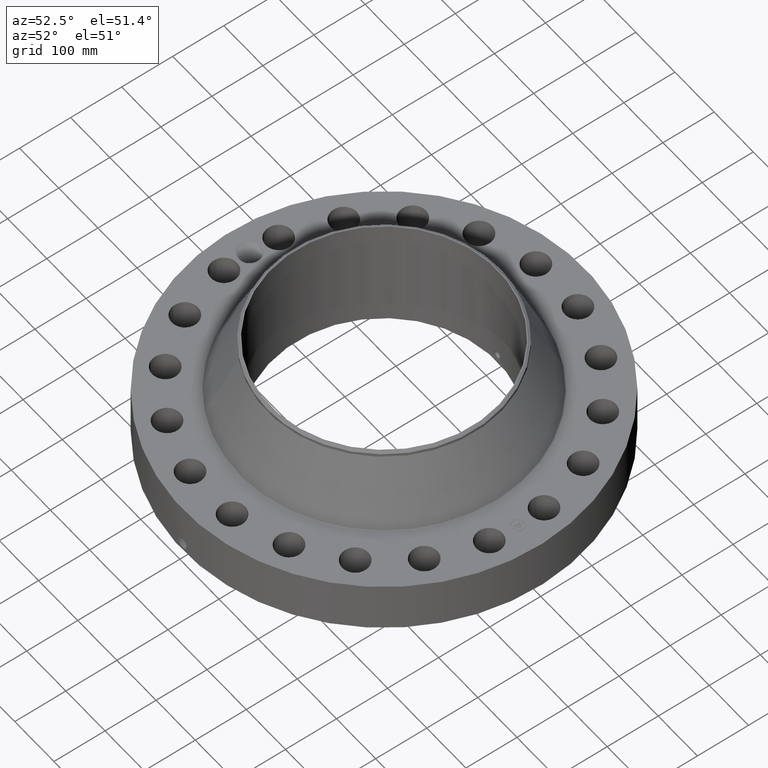
[diagram: clean part render]
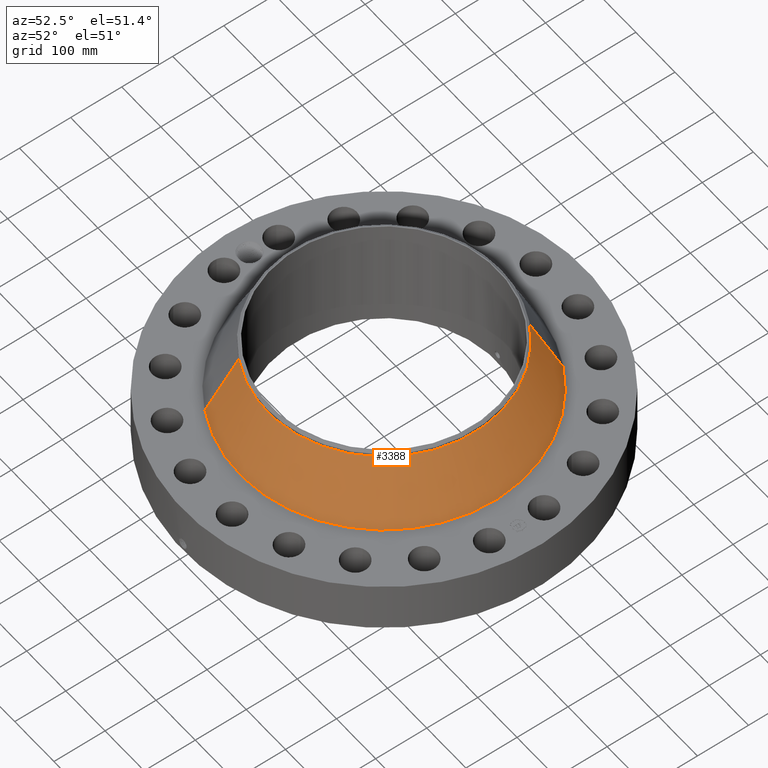
[diagram: same view with one face highlighted and labeled with its STEP entity id]
A machine part, auxiliary view. The second image highlights one B-rep face of the part: STEP entity #3388.
In plain terms, the highlighted conical surface has half-angle 24.642 deg.
Its self-contained STEP definition (entity closure, byte-faithful):
#2663=AXIS2_PLACEMENT_3D('Circle Axis2P3D',#2661,#2662,$) ;
#3361=AXIS2_PLACEMENT_3D('Cone Axis2P3D',#3358,#3359,#3360) ;
#3372=AXIS2_PLACEMENT_3D('Circle Axis2P3D',#3370,#3371,$) ;
#2658=CARTESIAN_POINT('Vertex',(5.31822179999,9.73493970622,4.3199657965)) ;
#2661=CARTESIAN_POINT('Axis2P3D Location',(0.,0.,4.3199657965)) ;
#2665=CARTESIAN_POINT('Vertex',(-5.31822179999,-9.73493970622,4.3199657965)) ;
#3358=CARTESIAN_POINT('Axis2P3D Location',(0.,0.,8.88236722847)) ;
#3363=CARTESIAN_POINT('Line Origine',(4.81652582372,8.81659138163,6.60116651249)) ;
#3367=CARTESIAN_POINT('Vertex',(4.31482984746,7.89824305704,8.88236722847)) ;
#3370=CARTESIAN_POINT('Axis2P3D Location',(0.,0.,8.88236722847)) ;
#3374=CARTESIAN_POINT('Vertex',(-4.31482984746,-7.89824305704,8.88236722847)) ;
#3377=CARTESIAN_POINT('Line Origine',(-4.81652582372,-8.81659138163,6.60116651249)) ;
#2662=DIRECTION('Axis2P3D Direction',(0.,0.,-0.0393700787402)) ;
#3359=DIRECTION('Axis2P3D Direction',(0.,0.,-0.0393700787402)) ;
#3360=DIRECTION('Axis2P3D XDirection',(-0.0188750212049,-0.0345504945626,0.)) ;
#3364=DIRECTION('Vector Direction',(0.00786997210337,0.0144058873054,-0.0357845923554)) ;
#3371=DIRECTION('Axis2P3D Direction',(0.,0.,-0.0393700787402)) ;
#3378=DIRECTION('Vector Direction',(-0.00786997210337,-0.0144058873054,-0.0357845923554)) ;
#3365=VECTOR('Line Direction',#3364,0.0393700787402) ;
#3379=VECTOR('Line Direction',#3378,0.0393700787402) ;
#3383=ORIENTED_EDGE('',*,*,#2667,.F.) ;
#3384=ORIENTED_EDGE('',*,*,#3369,.T.) ;
#3385=ORIENTED_EDGE('',*,*,#3376,.T.) ;
#3386=ORIENTED_EDGE('',*,*,#3381,.F.) ;
#3388=ADVANCED_FACE('PartBody',(#3387),#3362,.T.) ;
#2664=CIRCLE('generated circle',#2663,11.0929046781) ;
#3373=CIRCLE('generated circle',#3372,9.00000000004) ;
#3362=CONICAL_SURFACE('Cone',#3361,9.00000000004,0.430088996994) ;
#2667=EDGE_CURVE('',#2659,#2666,#2664,.T.) ;
#3369=EDGE_CURVE('',#2659,#3368,#3366,.F.) ;
#3376=EDGE_CURVE('',#3368,#3375,#3373,.T.) ;
#3381=EDGE_CURVE('',#2666,#3375,#3380,.F.) ;
#3382=EDGE_LOOP('',(#3383,#3384,#3385,#3386)) ;
#3387=FACE_OUTER_BOUND('',#3382,.T.) ;
#3366=LINE('Line',#3363,#3365) ;
#3380=LINE('Line',#3377,#3379) ;
#2659=VERTEX_POINT('',#2658) ;
#2666=VERTEX_POINT('',#2665) ;
#3368=VERTEX_POINT('',#3367) ;
#3375=VERTEX_POINT('',#3374) ;